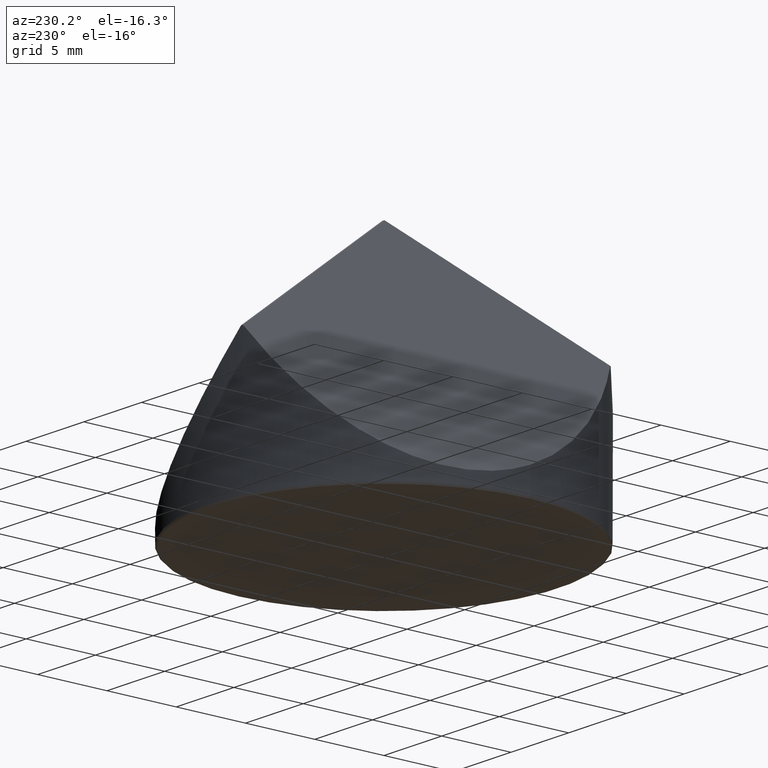
[diagram: clean part render]
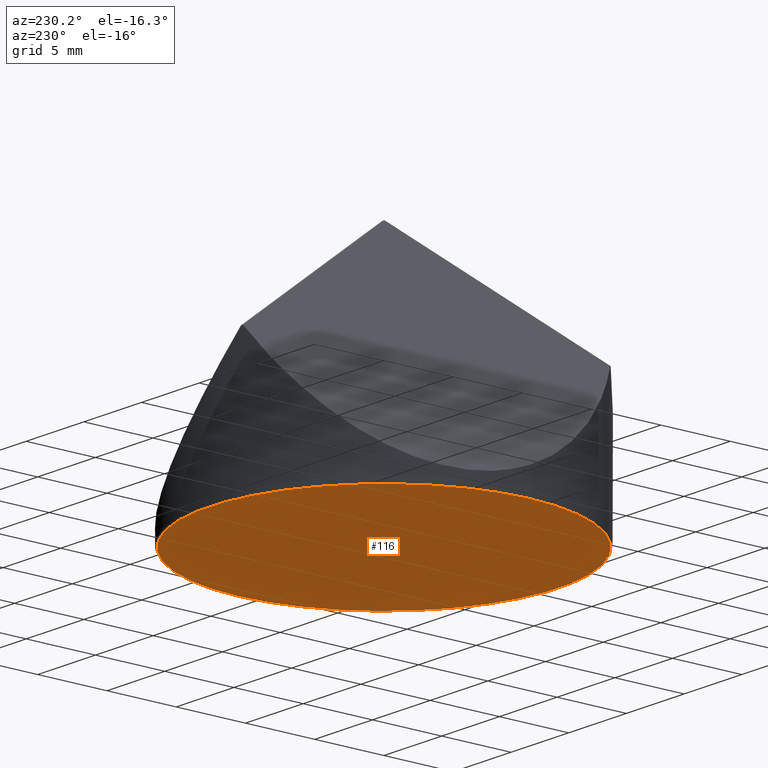
[diagram: same view with one face highlighted and labeled with its STEP entity id]
A machine part, auxiliary view. The second image highlights one B-rep face of the part: STEP entity #116.
In plain terms, the highlighted planar face has unit normal (0, 0, -1).
Its self-contained STEP definition (entity closure, byte-faithful):
#15 = ORIENTED_EDGE ( 'NONE', *, *, #91, .T. ) ;
#21 = ORIENTED_EDGE ( 'NONE', *, *, #185, .T. ) ;
#22 = CARTESIAN_POINT ( 'NONE',  ( 0.000000000000000000, 0.000000000000000000, -0.02000000000000000042 ) ) ;
#40 = EDGE_LOOP ( 'NONE', ( #15, #21 ) ) ;
#48 = CIRCLE ( 'NONE', #328, 12.60000000000000497 ) ;
#52 = DIRECTION ( 'NONE',  ( 0.000000000000000000, 0.000000000000000000, -1.000000000000000000 ) ) ;
#82 = PLANE ( 'NONE',  #93 ) ;
#88 = VERTEX_POINT ( 'NONE', #332 ) ;
#91 = EDGE_CURVE ( 'NONE', #88, #340, #334, .T. ) ;
#93 = AXIS2_PLACEMENT_3D ( 'NONE', #198, #52, #115 ) ;
#112 = DIRECTION ( 'NONE',  ( 0.000000000000000000, 0.000000000000000000, -1.000000000000000000 ) ) ;
#115 = DIRECTION ( 'NONE',  ( -1.000000000000000000, 0.000000000000000000, -0.000000000000000000 ) ) ;
#116 = ADVANCED_FACE ( 'NONE', ( #357 ), #82, .T. ) ;
#120 = CARTESIAN_POINT ( 'NONE',  ( 0.000000000000000000, 0.000000000000000000, -0.02000000000000000042 ) ) ;
#185 = EDGE_CURVE ( 'NONE', #340, #88, #48, .T. ) ;
#198 = CARTESIAN_POINT ( 'NONE',  ( 0.000000000000000000, 0.000000000000000000, -0.02000000000000000042 ) ) ;
#204 = DIRECTION ( 'NONE',  ( -1.000000000000000000, 0.000000000000000000, 0.000000000000000000 ) ) ;
#281 = DIRECTION ( 'NONE',  ( -1.000000000000000000, 0.000000000000000000, 0.000000000000000000 ) ) ;
#288 = AXIS2_PLACEMENT_3D ( 'NONE', #22, #112, #281 ) ;
#326 = CARTESIAN_POINT ( 'NONE',  ( -12.60000000000000497, 1.549178200921402149E-15, -0.02000000000000000042 ) ) ;
#328 = AXIS2_PLACEMENT_3D ( 'NONE', #120, #348, #204 ) ;
#332 = CARTESIAN_POINT ( 'NONE',  ( 12.60000000000000497, 0.000000000000000000, -0.02000000000000000042 ) ) ;
#334 = CIRCLE ( 'NONE', #288, 12.60000000000000497 ) ;
#340 = VERTEX_POINT ( 'NONE', #326 ) ;
#348 = DIRECTION ( 'NONE',  ( 0.000000000000000000, 0.000000000000000000, -1.000000000000000000 ) ) ;
#357 = FACE_OUTER_BOUND ( 'NONE', #40, .T. ) ;